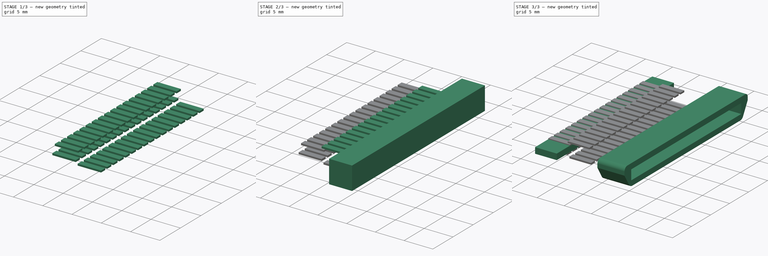
[diagram: build sequence overview — one tinted view per stage of 3, left to right]
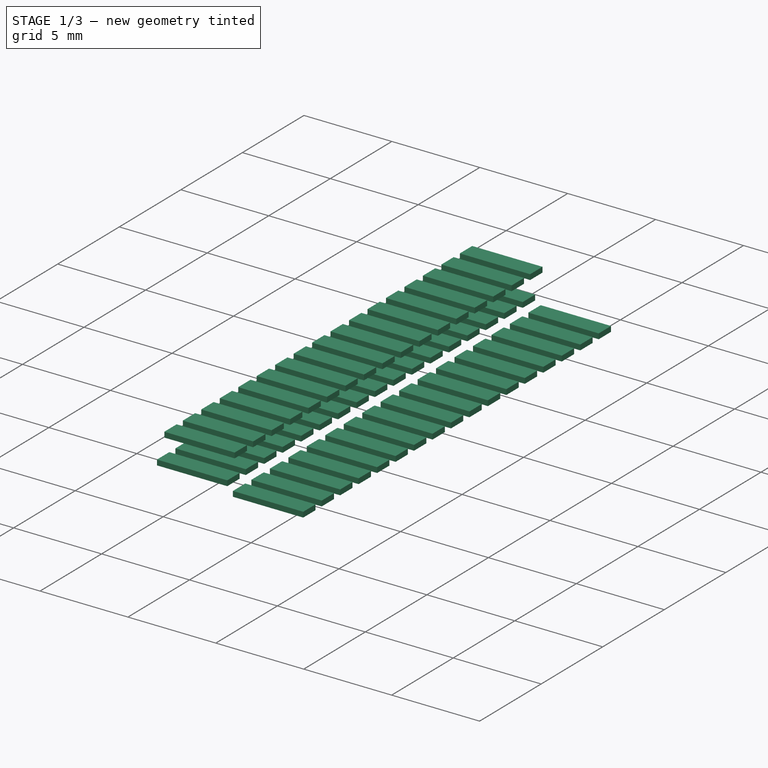
[diagram: stage 1 of 3 — iso view after this stage's code; geometry added in this stage tinted green]
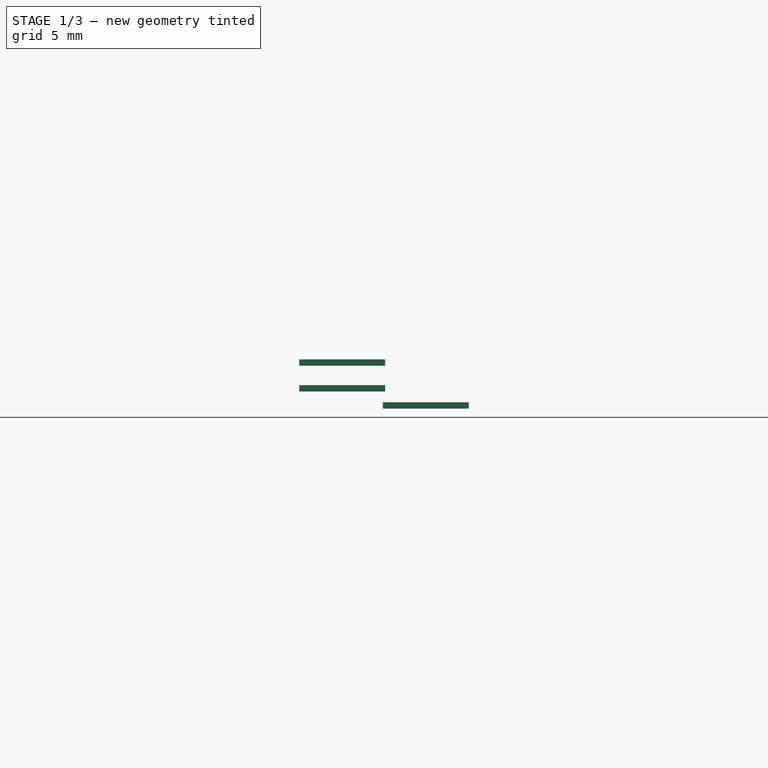
[diagram: stage 1 of 3 — front view after this stage's code; geometry added in this stage tinted green]
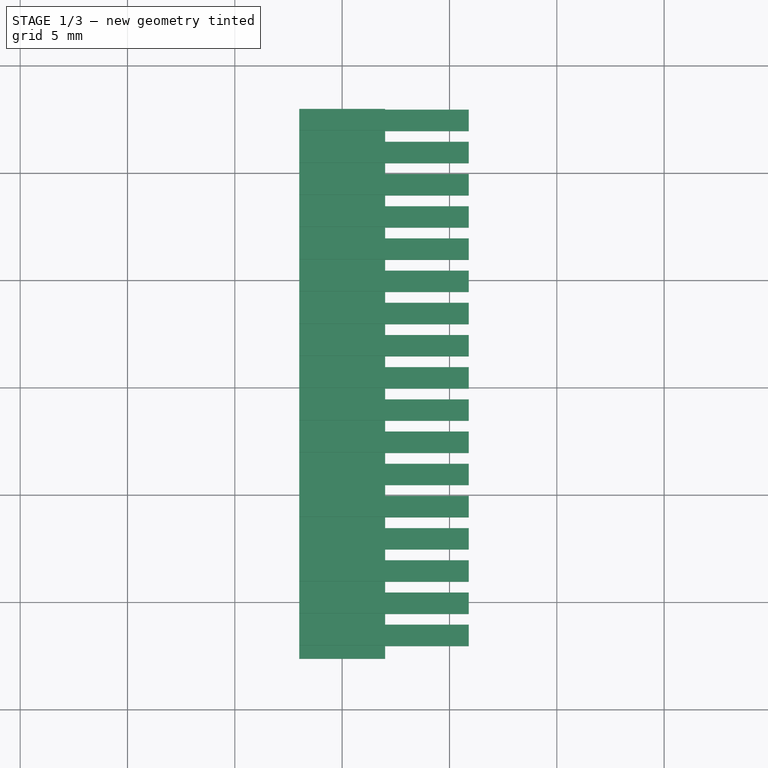
[diagram: stage 1 of 3 — top view after this stage's code; geometry added in this stage tinted green]
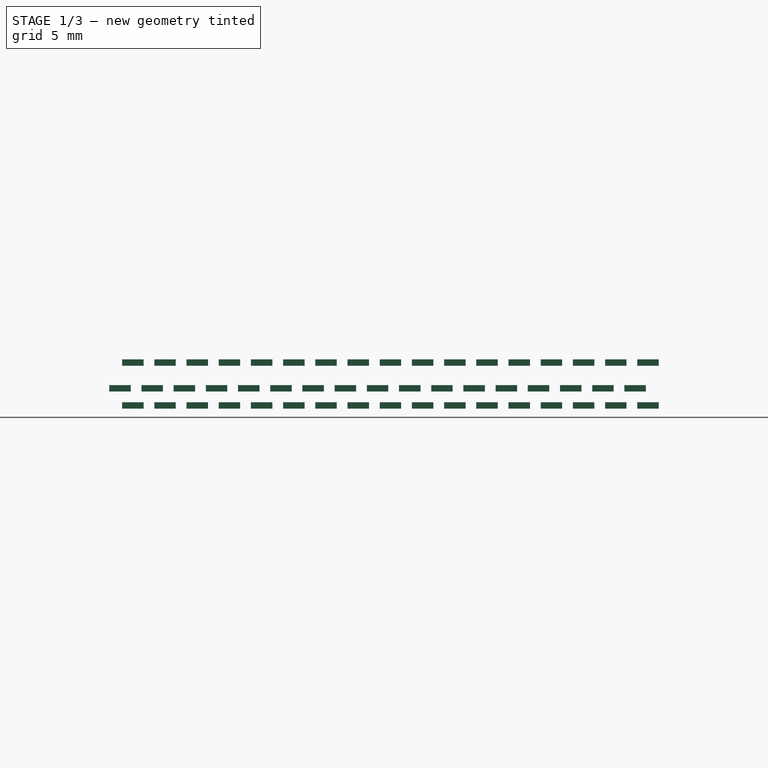
[diagram: stage 1 of 3 — right view after this stage's code; geometry added in this stage tinted green]
FCSTD DOCUMENT  (FreeCAD 0.17R13528 (Git))
Label: VHDCI 68pin male welding pad
License: All rights reserved
LicenseURL: http://en.wikipedia.org/wiki/All_rights_reserved
objects: Part::Extrusion×8, Sketcher::SketchObject×5, PartDesign::Body×2, Part::Feature×1
note: 16 computed .brp shape members not serialized (recipe doc carries the construction recipe); baked Part::Feature solids carry a one-line shape summary decoded from their .brp

FEATURE [Part::Extrusion] Extrude005
  Base = -> Sketch004
  Dir = (1,0,0)
  DirMode = 2
  FaceMakerClass = Part::FaceMakerBullseye
  LengthFwd = 4
  LengthRev = 0
  Placement = pos=(-12,0.6,-0.8) rot=(0,0,1;0rad)
  Solid = true
  Symmetric = false
FEATURE [Part::Extrusion] Extrude006
  Base = -> Sketch004
  Dir = (1,0,0)
  DirMode = 2
  FaceMakerClass = Part::FaceMakerBullseye
  LengthFwd = 4
  LengthRev = 0
  Placement = pos=(-12,0,-2) rot=(0,0,1;0rad)
  Solid = true
  Symmetric = false
FEATURE [Part::Extrusion] Extrude007
  Base = -> Sketch004
  Dir = (1,0,0)
  DirMode = 2
  FaceMakerClass = Part::FaceMakerBullseye
  LengthFwd = 4
  LengthRev = 0
  Placement = pos=(-8.1,0.6,-2.8) rot=(0,0,1;0rad)
  Solid = true
  Symmetric = false
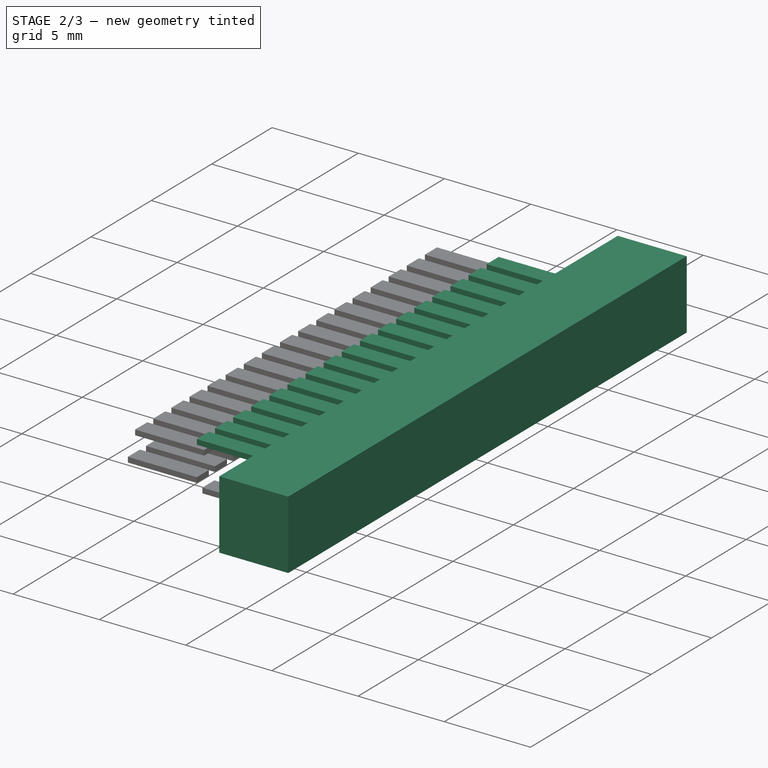
[diagram: stage 2 of 3 — iso view after this stage's code; geometry added in this stage tinted green]
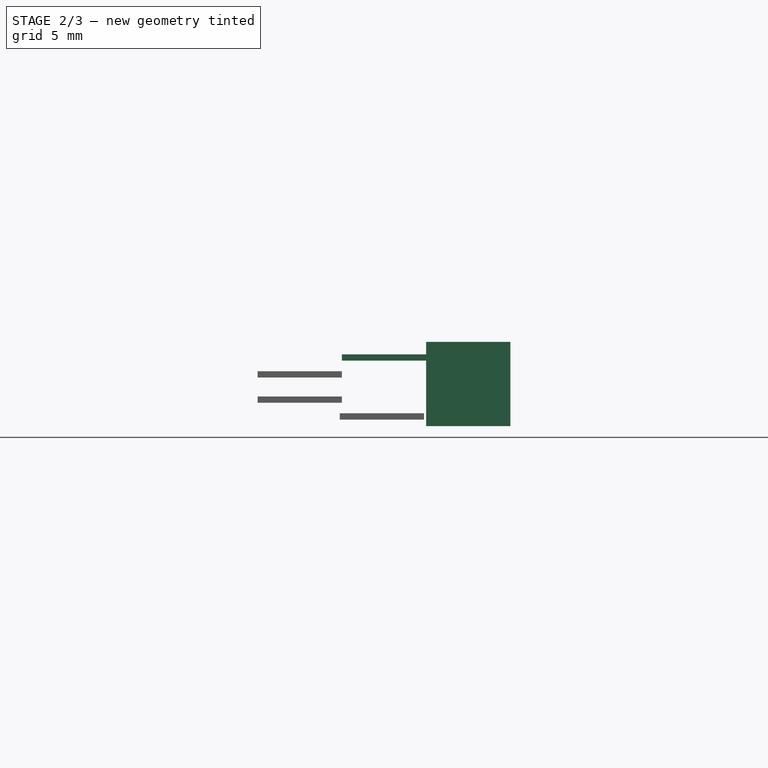
[diagram: stage 2 of 3 — front view after this stage's code; geometry added in this stage tinted green]
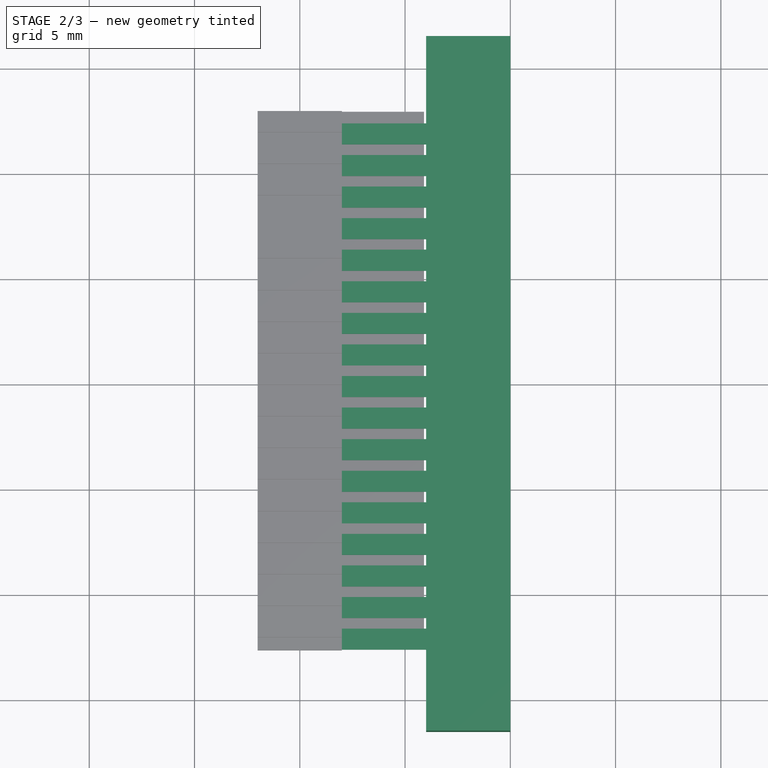
[diagram: stage 2 of 3 — top view after this stage's code; geometry added in this stage tinted green]
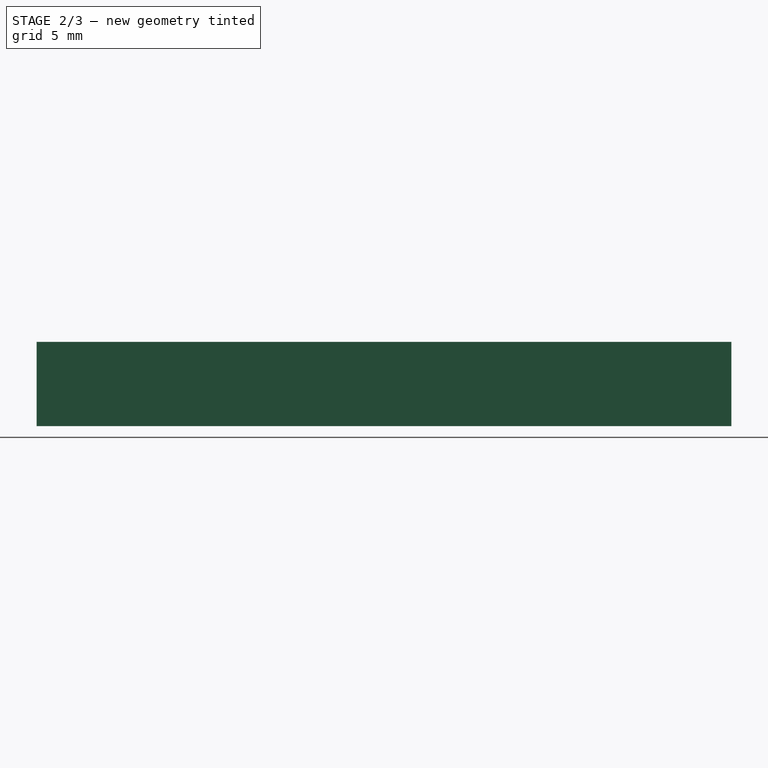
[diagram: stage 2 of 3 — right view after this stage's code; geometry added in this stage tinted green]
FEATURE [Sketcher::SketchObject] Sketch001
  MapMode = 5
  Placement = pos=(0,0,0) rot=(0.57735,0.57735,0.57735;2.0944rad)
  Support = -> [YZ_Plane]
  sketch-geometry (4):
    g0: LineSegment StartX=16.5 StartY=2 StartZ=0 EndX=-16.5 EndY=2 EndZ=0
    g1: LineSegment StartX=-16.5 StartY=2 StartZ=0 EndX=-16.5 EndY=-2 EndZ=0
    g2: LineSegment StartX=-16.5 StartY=-2 StartZ=0 EndX=16.5 EndY=-2 EndZ=0
    g3: LineSegment StartX=16.5 StartY=-2 StartZ=0 EndX=16.5 EndY=2 EndZ=0
  constraints (12):
    c: Coincident(g0,g1)
    c: Coincident(g1,g2)
    c: Coincident(g2,g3)
    c: Coincident(g3,g0)
    c: Horizontal(g0)
    c: Horizontal(g2)
    c: Vertical(g1)
    c: Vertical(g3)
    c: Symmetric(g0,g0,g-2)
    c: Symmetric(g0,g1,g-1)
    c: DistanceY(g3,g3) = 4
    c: DistanceX(g0,g0) = 33
FEATURE [Part::Extrusion] Extrude001
  Base = -> Sketch001
  Dir = (1,0,0)
  DirMode = 2
  FaceMakerClass = Part::FaceMakerBullseye
  LengthFwd = 4
  LengthRev = 0
  Reversed = true
  Solid = true
  Symmetric = false
FEATURE [Sketcher::SketchObject] Sketch004
  MapMode = 5
  Placement = pos=(0,0,0) rot=(0.57735,0.57735,0.57735;2.0944rad)
  Support = -> [YZ_Plane001]
  sketch-geometry (69):
    g0: LineSegment StartX=-12.6432 StartY=1.40804 StartZ=0 EndX=-11.6432 EndY=1.40804 EndZ=0
    g1: LineSegment StartX=-11.6432 StartY=1.40804 StartZ=0 EndX=-11.6432 EndY=1.10804 EndZ=0
    g2: LineSegment StartX=-11.6432 StartY=1.10804 StartZ=0 EndX=-12.6432 EndY=1.10804 EndZ=0
    g3: LineSegment StartX=-12.6432 StartY=1.10804 StartZ=0 EndX=-12.6432 EndY=1.40804 EndZ=0
    g4: LineSegment [constr] StartX=-11.6432 StartY=1.10804 StartZ=0 EndX=-10.1432 EndY=1.10804 EndZ=0
    g5: LineSegment StartX=-11.1432 StartY=1.40804 StartZ=0 EndX=-10.1432 EndY=1.40804 EndZ=0
    g6: LineSegment StartX=-10.1432 StartY=1.40804 StartZ=0 EndX=-10.1432 EndY=1.10804 EndZ=0
    g7: LineSegment StartX=-10.1432 StartY=1.10804 StartZ=0 EndX=-11.1432 EndY=1.10804 EndZ=0
    g8: LineSegment StartX=-11.1432 StartY=1.10804 StartZ=0 EndX=-11.1432 EndY=1.40804 EndZ=0
    g9: LineSegment StartX=-9.64319 StartY=1.40804 StartZ=0 EndX=-8.64319 EndY=1.40804 EndZ=0
    g10: LineSegment StartX=-8.64319 StartY=1.40804 StartZ=0 EndX=-8.64319 EndY=1.10804 EndZ=0
    g11: LineSegment StartX=-8.64319 StartY=1.10804 StartZ=0 EndX=-9.64319 EndY=1.10804 EndZ=0
    g12: LineSegment StartX=-9.64319 StartY=1.10804 StartZ=0 EndX=-9.64319 EndY=1.40804 EndZ=0
    g13: LineSegment StartX=-8.14319 StartY=1.40804 StartZ=0 EndX=-7.14319 EndY=1.40804 EndZ=0
    g14: LineSegment StartX=-7.14319 StartY=1.40804 StartZ=0 EndX=-7.14319 EndY=1.10804 EndZ=0
    g15: LineSegment StartX=-7.14319 StartY=1.10804 StartZ=0 EndX=-8.14319 EndY=1.10804 EndZ=0
    g16: LineSegment StartX=-8.14319 StartY=1.10804 StartZ=0 EndX=-8.14319 EndY=1.40804 EndZ=0
    g17: LineSegment StartX=-6.64319 StartY=1.40804 StartZ=0 EndX=-5.64319 EndY=1.40804 EndZ=0
    g18: LineSegment StartX=-5.64319 StartY=1.40804 StartZ=0 EndX=-5.64319 EndY=1.10804 EndZ=0
    g19: LineSegment StartX=-5.64319 StartY=1.10804 StartZ=0 EndX=-6.64319 EndY=1.10804 EndZ=0
    g20: LineSegment StartX=-6.64319 StartY=1.10804 StartZ=0 EndX=-6.64319 EndY=1.40804 EndZ=0
    g21: LineSegment StartX=-5.14319 StartY=1.40804 StartZ=0 EndX=-4.14319 EndY=1.40804 EndZ=0
    g22: LineSegment StartX=-4.14319 StartY=1.40804 StartZ=0 EndX=-4.14319 EndY=1.10804 EndZ=0
    g23: LineSegment StartX=-4.14319 StartY=1.10804 StartZ=0 EndX=-5.14319 EndY=1.10804 EndZ=0
    g24: LineSegment StartX=-5.14319 StartY=1.10804 StartZ=0 EndX=-5.14319 EndY=1.40804 EndZ=0
    g25: LineSegment StartX=-3.64319 StartY=1.40804 StartZ=0 EndX=-2.64319 EndY=1.40804 EndZ=0
    g26: LineSegment StartX=-2.64319 StartY=1.40804 StartZ=0 EndX=-2.64319 EndY=1.10804 EndZ=0
    g27: LineSegment StartX=-2.64319 StartY=1.10804 StartZ=0 EndX=-3.64319 EndY=1.10804 EndZ=0
    g28: LineSegment StartX=-3.64319 StartY=1.10804 StartZ=0 EndX=-3.64319 EndY=1.40804 EndZ=0
    g29: LineSegment StartX=-2.14319 StartY=1.40804 StartZ=0 EndX=-1.14319 EndY=1.40804 EndZ=0
    g30: LineSegment StartX=-1.14319 StartY=1.40804 StartZ=0 EndX=-1.14319 EndY=1.10804 EndZ=0
    g31: LineSegment StartX=-1.14319 StartY=1.10804 StartZ=0 EndX=-2.14319 EndY=1.10804 EndZ=0
    g32: LineSegment StartX=-2.14319 StartY=1.10804 StartZ=0 EndX=-2.14319 EndY=1.40804 EndZ=0
    g33: LineSegment StartX=-0.643187 StartY=1.40804 StartZ=0 EndX=0.356813 EndY=1.40804 EndZ=0
    g34: LineSegment StartX=0.356813 StartY=1.40804 StartZ=0 EndX=0.356813 EndY=1.10804 EndZ=0
    g35: LineSegment StartX=0.356813 StartY=1.10804 StartZ=0 EndX=-0.643187 EndY=1.10804 EndZ=0
    g36: LineSegment StartX=-0.643187 StartY=1.10804 StartZ=0 EndX=-0.643187 EndY=1.40804 EndZ=0
    g37: LineSegment StartX=0.856813 StartY=1.40804 StartZ=0 EndX=1.85681 EndY=1.40804 EndZ=0
    g38: LineSegment StartX=1.85681 StartY=1.40804 StartZ=0 EndX=1.85681 EndY=1.10804 EndZ=0
    g39: LineSegment StartX=1.85681 StartY=1.10804 StartZ=0 EndX=0.856813 EndY=1.10804 EndZ=0
    g40: LineSegment StartX=0.856813 StartY=1.10804 StartZ=0 EndX=0.856813 EndY=1.40804 EndZ=0
    g41: LineSegment StartX=2.35681 StartY=1.40804 StartZ=0 EndX=3.35681 EndY=1.40804 EndZ=0
    g42: LineSegment StartX=3.35681 StartY=1.40804 StartZ=0 EndX=3.35681 EndY=1.10804 EndZ=0
    g43: LineSegment StartX=3.35681 StartY=1.10804 StartZ=0 EndX=2.35681 EndY=1.10804 EndZ=0
    g44: LineSegment StartX=2.35681 StartY=1.10804 StartZ=0 EndX=2.35681 EndY=1.40804 EndZ=0
    g45: LineSegment StartX=3.85681 StartY=1.40804 StartZ=0 EndX=4.85681 EndY=1.40804 EndZ=0
    g46: LineSegment StartX=4.85681 StartY=1.40804 StartZ=0 EndX=4.85681 EndY=1.10804 EndZ=0
    g47: LineSegment StartX=4.85681 StartY=1.10804 StartZ=0 EndX=3.85681 EndY=1.10804 EndZ=0
    g48: LineSegment StartX=3.85681 StartY=1.10804 StartZ=0 EndX=3.85681 EndY=1.40804 EndZ=0
    g49: LineSegment StartX=5.35681 StartY=1.40804 StartZ=0 EndX=6.35681 EndY=1.40804 EndZ=0
    g50: LineSegment StartX=6.35681 StartY=1.40804 StartZ=0 EndX=6.35681 EndY=1.10804 EndZ=0
    g51: LineSegment StartX=6.35681 StartY=1.10804 StartZ=0 EndX=5.35681 EndY=1.10804 EndZ=0
    g52: LineSegment StartX=5.35681 StartY=1.10804 StartZ=0 EndX=5.35681 EndY=1.40804 EndZ=0
    g53: LineSegment StartX=6.85681 StartY=1.40804 StartZ=0 EndX=7.85681 EndY=1.40804 EndZ=0
    g54: LineSegment StartX=7.85681 StartY=1.40804 StartZ=0 EndX=7.85681 EndY=1.10804 EndZ=0
    g55: LineSegment StartX=7.85681 StartY=1.10804 StartZ=0 EndX=6.85681 EndY=1.10804 EndZ=0
    g56: LineSegment StartX=6.85681 StartY=1.10804 StartZ=0 EndX=6.85681 EndY=1.40804 EndZ=0
    g57: LineSegment StartX=8.35681 StartY=1.40804 StartZ=0 EndX=9.35681 EndY=1.40804 EndZ=0
    g58: LineSegment StartX=9.35681 StartY=1.40804 StartZ=0 EndX=9.35681 EndY=1.10804 EndZ=0
    g59: LineSegment StartX=9.35681 StartY=1.10804 StartZ=0 EndX=8.35681 EndY=1.10804 EndZ=0
    g60: LineSegment StartX=8.35681 StartY=1.10804 StartZ=0 EndX=8.35681 EndY=1.40804 EndZ=0
    g61: LineSegment StartX=9.85681 StartY=1.40804 StartZ=0 EndX=10.8568 EndY=1.40804 EndZ=0
    g62: LineSegment StartX=10.8568 StartY=1.40804 StartZ=0 EndX=10.8568 EndY=1.10804 EndZ=0
    g63: LineSegment StartX=10.8568 StartY=1.10804 StartZ=0 EndX=9.85681 EndY=1.10804 EndZ=0
    g64: LineSegment StartX=9.85681 StartY=1.10804 StartZ=0 EndX=9.85681 EndY=1.40804 EndZ=0
    g65: LineSegment StartX=11.3568 StartY=1.40804 StartZ=0 EndX=12.3568 EndY=1.40804 EndZ=0
    g66: LineSegment StartX=12.3568 StartY=1.40804 StartZ=0 EndX=12.3568 EndY=1.10804 EndZ=0
    g67: LineSegment StartX=12.3568 StartY=1.10804 StartZ=0 EndX=11.3568 EndY=1.10804 EndZ=0
    g68: LineSegment StartX=11.3568 StartY=1.10804 StartZ=0 EndX=11.3568 EndY=1.40804 EndZ=0
  constraints (173):
    c: Coincident(g0,g1)
    c: Coincident(g1,g2)
    c: Coincident(g2,g3)
    c: Coincident(g3,g0)
    c: Horizontal(g0)
    c: Horizontal(g2)
    c: Vertical(g1)
    c: Vertical(g3)
    c: Coincident(g4,g1)
    c: Horizontal(g4)
    c: DistanceX(g0,g0) = 1
    c: DistanceX(g4,g4) = 1.5
    c: DistanceY(g3,g3) = 0.3
    c: Coincident(g5,g6)
    c: Coincident(g6,g7)
    c: Coincident(g7,g8)
    c: Coincident(g8,g5)
    c: Horizontal(g5)
    c: Horizontal(g7)
    c: Vertical(g6)
    c: Vertical(g8)
    c: Equal(g0,g5) = 1
    c: Equal(g3,g8) = 0.3
    c: Coincident(g9,g10)
    c: Coincident(g10,g11)
    c: Coincident(g11,g12)
    c: Coincident(g12,g9)
    c: Horizontal(g9)
    c: Horizontal(g11)
    c: Vertical(g10)
    c: Vertical(g12)
    c: Equal(g0,g9) = 1
    c: Equal(g3,g12) = 0.3
    c: Coincident(g13,g14)
    c: Coincident(g14,g15)
    c: Coincident(g15,g16)
    c: Coincident(g16,g13)
    c: Horizontal(g13)
    c: Horizontal(g15)
    c: Vertical(g14)
    c: Vertical(g16)
    c: Equal(g0,g13) = 1
    c: Equal(g3,g16) = 0.3
    c: Coincident(g17,g18)
    c: Coincident(g18,g19)
    c: Coincident(g19,g20)
    c: Coincident(g20,g17)
    c: Horizontal(g17)
    c: Horizontal(g19)
    c: Vertical(g18)
    c: Vertical(g20)
    c: Equal(g0,g17) = 1
    c: Equal(g3,g20) = 0.3
    c: Coincident(g21,g22)
    c: Coincident(g22,g23)
    c: Coincident(g23,g24)
    c: Coincident(g24,g21)
    c: Horizontal(g21)
    c: Horizontal(g23)
    c: Vertical(g22)
    c: Vertical(g24)
    c: Equal(g0,g21) = 1
    c: Equal(g3,g24) = 0.3
    c: Coincident(g25,g26)
    c: Coincident(g26,g27)
    c: Coincident(g27,g28)
    c: Coincident(g28,g25)
    c: Horizontal(g25)
    c: Horizontal(g27)
    c: Vertical(g26)
    c: Vertical(g28)
    c: Equal(g0,g25) = 1
    c: Equal(g3,g28) = 0.3
    c: Coincident(g29,g30)
    c: Coincident(g30,g31)
    c: Coincident(g31,g32)
    c: Coincident(g32,g29)
    c: Horizontal(g29)
    c: Horizontal(g31)
    c: Vertical(g30)
    c: Vertical(g32)
    c: Equal(g0,g29) = 1
    c: Equal(g3,g32) = 0.3
    c: Coincident(g33,g34)
    c: Coincident(g34,g35)
    c: Coincident(g35,g36)
    c: Coincident(g36,g33)
    c: Horizontal(g33)
    c: Horizontal(g35)
    c: Vertical(g34)
    c: Vertical(g36)
    c: Equal(g0,g33) = 1
    c: Equal(g3,g36) = 0.3
    c: Coincident(g37,g38)
    c: Coincident(g38,g39)
    c: Coincident(g39,g40)
    c: Coincident(g40,g37)
    c: Horizontal(g37)
    c: Horizontal(g39)
    c: Vertical(g38)
    c: Vertical(g40)
    c: Equal(g0,g37) = 1
    c: Equal(g3,g40) = 0.3
    c: Coincident(g41,g42)
    c: Coincident(g42,g43)
    c: Coincident(g43,g44)
    c: Coincident(g44,g41)
    c: Horizontal(g41)
    c: Horizontal(g43)
    c: Vertical(g42)
    c: Vertical(g44)
    c: Equal(g0,g41) = 1
    c: Equal(g3,g44) = 0.3
    c: Coincident(g45,g46)
    c: Coincident(g46,g47)
    c: Coincident(g47,g48)
    c: Coincident(g48,g45)
    c: Horizontal(g45)
    c: Horizontal(g47)
    c: Vertical(g46)
    c: Vertical(g48)
    c: Equal(g0,g45) = 1
    c: Equal(g3,g48) = 0.3
    c: Coincident(g49,g50)
    c: Coincident(g50,g51)
    c: Coincident(g51,g52)
    c: Coincident(g52,g49)
    c: Horizontal(g49)
    c: Horizontal(g51)
    c: Vertical(g50)
    c: Vertical(g52)
    c: Equal(g0,g49) = 1
    c: Equal(g3,g52) = 0.3
    c: Coincident(g53,g54)
    c: Coincident(g54,g55)
    c: Coincident(g55,g56)
    c: Coincident(g56,g53)
    c: Horizontal(g53)
    c: Horizontal(g55)
    c: Vertical(g54)
    c: Vertical(g56)
    c: Equal(g0,g53) = 1
    c: Equal(g3,g56) = 0.3
    c: Coincident(g57,g58)
    c: Coincident(g58,g59)
    c: Coincident(g59,g60)
    c: Coincident(g60,g57)
    c: Horizontal(g57)
    c: Horizontal(g59)
    c: Vertical(g58)
    c: Vertical(g60)
    c: Equal(g0,g57) = 1
    c: Equal(g3,g60) = 0.3
    c: Coincident(g61,g62)
    c: Coincident(g62,g63)
    c: Coincident(g63,g64)
    c: Coincident(g64,g61)
    c: Horizontal(g61)
    c: Horizontal(g63)
    c: Vertical(g62)
    c: Vertical(g64)
    c: Equal(g0,g61) = 1
    c: Equal(g3,g64) = 0.3
    c: Coincident(g65,g66)
    c: Coincident(g66,g67)
    c: Coincident(g67,g68)
    c: Coincident(g68,g65)
    c: Horizontal(g65)
    c: Horizontal(g67)
    c: Vertical(g66)
    c: Vertical(g68)
    c: Equal(g0,g65) = 1
    c: Equal(g3,g68) = 0.3
FEATURE [PartDesign::Body] Body001  label="pad area"
  Group = -> [Sketch004]
  Origin = -> Origin001
FEATURE [Part::Extrusion] Extrude004
  Base = -> Sketch004
  Dir = (1,0,0)
  DirMode = 2
  FaceMakerClass = Part::FaceMakerBullseye
  LengthFwd = 4
  LengthRev = 0
  Placement = pos=(-8,0,0) rot=(0,0,1;0rad)
  Solid = true
  Symmetric = false
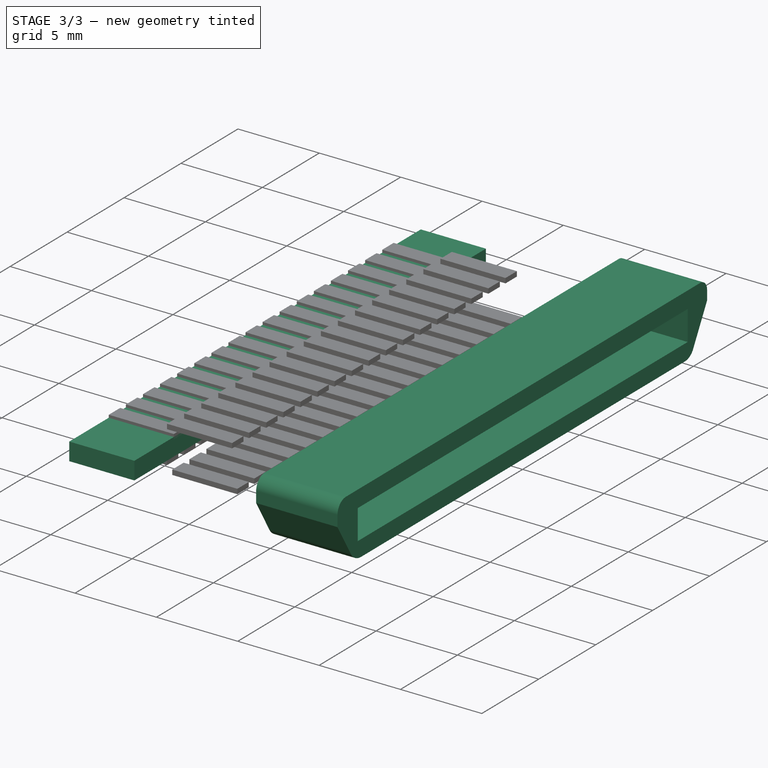
[diagram: stage 3 of 3 — iso view after this stage's code; geometry added in this stage tinted green]
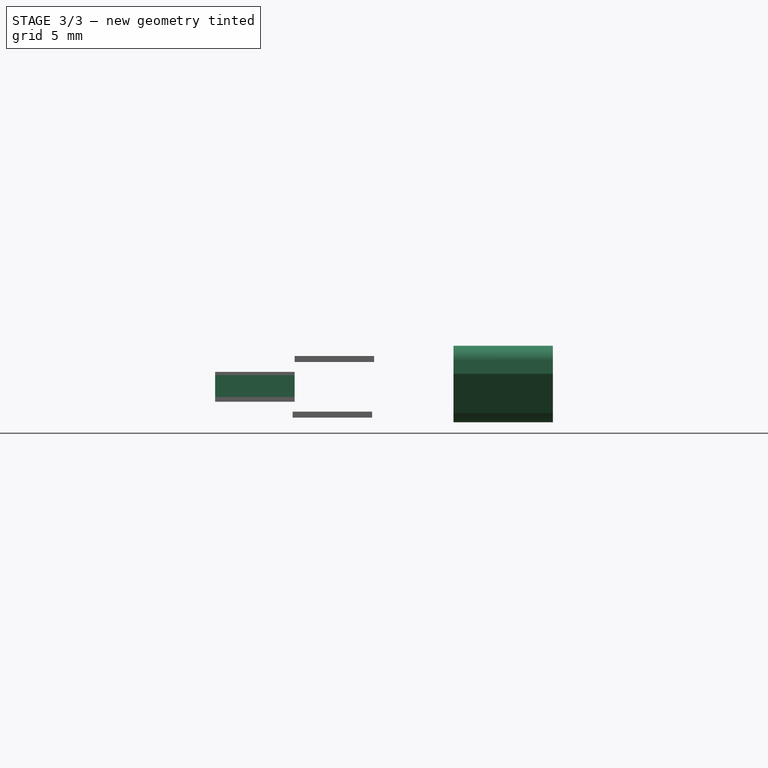
[diagram: stage 3 of 3 — front view after this stage's code; geometry added in this stage tinted green]
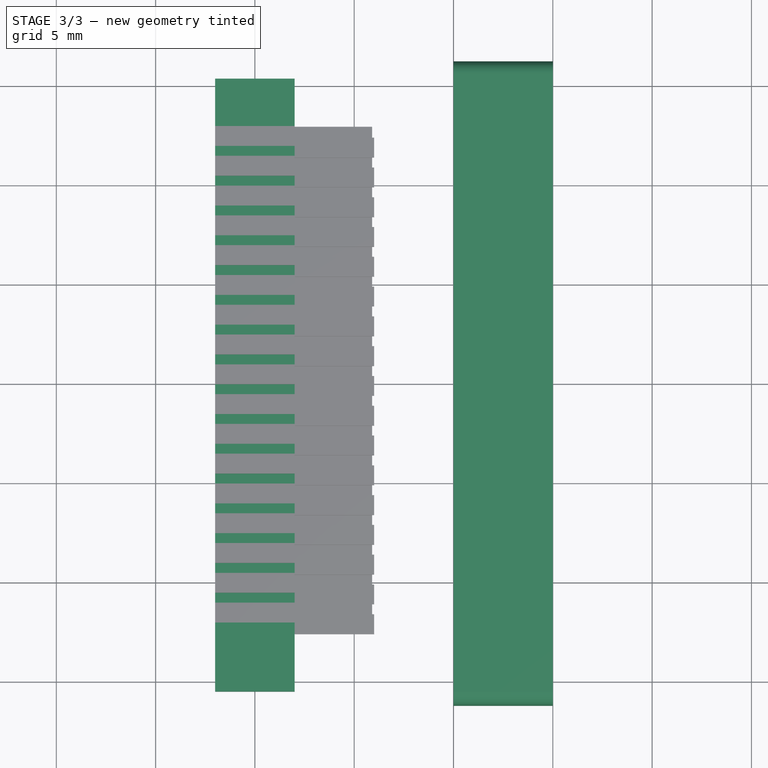
[diagram: stage 3 of 3 — top view after this stage's code; geometry added in this stage tinted green]
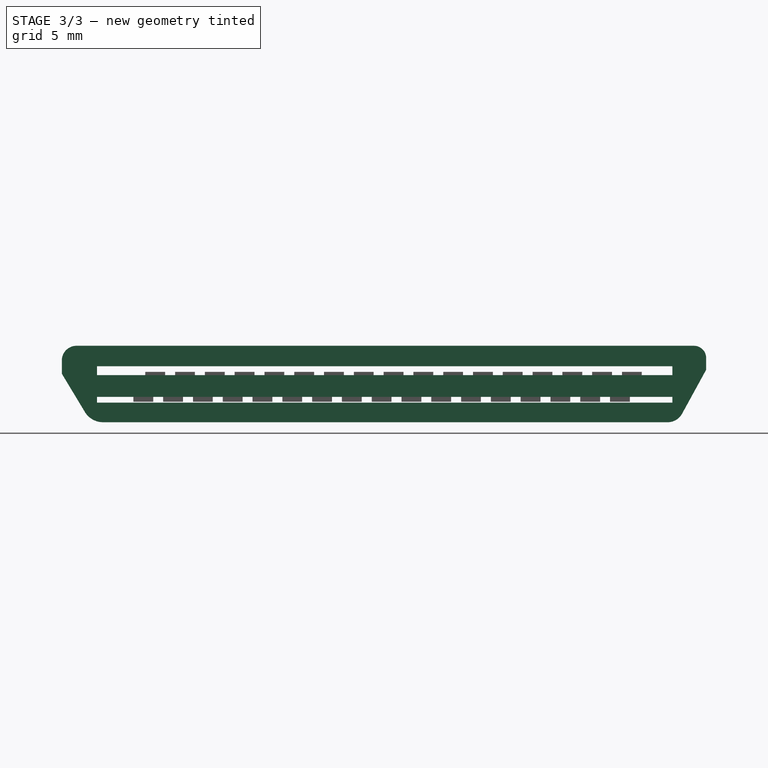
[diagram: stage 3 of 3 — right view after this stage's code; geometry added in this stage tinted green]
FEATURE [Part::Feature] Part__Feature  label="VHDCI_RTANG_RCPT_SGL_SHRTPEG"
  shape: bbox 14.75 x 42.7 x 8.284 mm, 2870 faces (baked)
FEATURE [Sketcher::SketchObject] Sketch
  MapMode = 5
  Placement = pos=(0,0,0) rot=(0.57735,0.57735,0.57735;2.0944rad)
  Support = -> [YZ_Plane]
  sketch-geometry (14):
    g0: LineSegment StartX=15.582 StartY=1.92428 StartZ=0 EndX=-15.508 EndY=1.92428 EndZ=0
    g1: LineSegment StartX=-16.2446 StartY=1.18771 StartZ=0 EndX=-16.2446 EndY=0.517727 EndZ=0
    g2: LineSegment StartX=-14.1702 StartY=-1.92456 StartZ=0 EndX=14.2649 EndY=-1.92456 EndZ=0
    g3: LineSegment StartX=16.197 StartY=0.717215 StartZ=0 EndX=16.197 EndY=1.30922 EndZ=0
    g4: LineSegment StartX=14.9823 StartY=-1.49959 StartZ=0 EndX=16.197 EndY=0.717215 EndZ=0
    g5: LineSegment StartX=-15.0857 StartY=-1.40709 StartZ=0 EndX=-16.2446 EndY=0.517727 EndZ=0
    g6: LineSegment StartX=-14.4716 StartY=0.895592 StartZ=0 EndX=14.4965 EndY=0.895592 EndZ=0
    g7: LineSegment StartX=14.4965 StartY=0.895592 StartZ=0 EndX=14.4965 EndY=-0.938801 EndZ=0
    g8: LineSegment StartX=14.4965 StartY=-0.938801 StartZ=0 EndX=-14.4716 EndY=-0.938801 EndZ=0
    g9: LineSegment StartX=-14.4716 StartY=-0.938801 StartZ=0 EndX=-14.4716 EndY=0.895592 EndZ=0
    g10: ArcOfCircle CenterX=-15.508 CenterY=1.18771 CenterZ=0 NormalX=0 NormalY=0 NormalZ=1 AngleXU=0 Radius=0.736567 StartAngle=1.5708 EndAngle=3.14159
    g11: ArcOfCircle CenterX=15.582 CenterY=1.30922 CenterZ=0 NormalX=0 NormalY=0 NormalZ=1 AngleXU=0 Radius=0.615063 StartAngle=0 EndAngle=1.5708
    g12: ArcOfCircle CenterX=14.2649 CenterY=-1.10649 CenterZ=0 NormalX=0 NormalY=0 NormalZ=1 AngleXU=0 Radius=0.818066 StartAngle=4.71239 EndAngle=5.78193
    g13: ArcOfCircle CenterX=-14.1702 CenterY=-0.855876 CenterZ=0 NormalX=0 NormalY=0 NormalZ=1 AngleXU=0 Radius=1.06868 StartAngle=3.68353 EndAngle=4.71239
  constraints (22):
    c: Horizontal(g0)
    c: Horizontal(g2)
    c: Vertical(g1)
    c: Vertical(g3)
    c: Coincident(g3,g4)
    c: Coincident(g1,g5)
    c: Coincident(g6,g7)
    c: Coincident(g7,g8)
    c: Coincident(g8,g9)
    c: Coincident(g9,g6)
    c: Horizontal(g6)
    c: Horizontal(g8)
    c: Vertical(g7)
    c: Vertical(g9)
    c: Tangent(g0,g10) = -1.5708
    c: Tangent(g1,g10) = -1.5708
    c: Tangent(g0,g11) = -1.5708
    c: Tangent(g3,g11) = -1.5708
    c: Tangent(g4,g12) = -1.5708
    c: Tangent(g2,g12) = -1.5708
    c: Tangent(g5,g13) = 1.5708
    c: Tangent(g2,g13) = -1.5708
FEATURE [Part::Extrusion] Extrude
  Base = -> Sketch
  Dir = (1,0,0)
  DirMode = 2
  FaceMakerClass = Part::FaceMakerBullseye
  LengthFwd = 5
  LengthRev = 0
  Solid = true
  Symmetric = false
FEATURE [Sketcher::SketchObject] Sketch002
  MapMode = 5
  Placement = pos=(-4,0,0) rot=(-0.57735,0.57735,0.57735;4.18879rad)
  Support = -> [Extrude001]
  sketch-geometry (4):
    g0: LineSegment StartX=-15.4165 StartY=1.25981 StartZ=0 EndX=15.4407 EndY=1.25981 EndZ=0
    g1: LineSegment StartX=15.4407 StartY=1.25981 StartZ=0 EndX=15.4407 EndY=-1.40469 EndZ=0
    g2: LineSegment StartX=15.4407 StartY=-1.40469 StartZ=0 EndX=-15.4165 EndY=-1.40469 EndZ=0
    g3: LineSegment StartX=-15.4165 StartY=-1.40469 StartZ=0 EndX=-15.4165 EndY=1.25981 EndZ=0
  constraints (8):
    c: Coincident(g0,g1)
    c: Coincident(g1,g2)
    c: Coincident(g2,g3)
    c: Coincident(g3,g0)
    c: Horizontal(g0)
    c: Horizontal(g2)
    c: Vertical(g1)
    c: Vertical(g3)
FEATURE [Part::Extrusion] Extrude002
  Base = -> Sketch002
  Dir = (-1,0,0)
  DirMode = 2
  FaceMakerClass = Part::FaceMakerBullseye
  LengthFwd = 4
  LengthRev = 0
  Solid = true
  Symmetric = false
FEATURE [Sketcher::SketchObject] Sketch003
  MapMode = 5
  Placement = pos=(-8,0,0) rot=(-0.57735,0.57735,0.57735;4.18879rad)
  Support = -> [Extrude002]
  sketch-geometry (4):
    g0: LineSegment StartX=-15.3459 StartY=0.44483 StartZ=0 EndX=15.5103 EndY=0.44483 EndZ=0
    g1: LineSegment StartX=15.5103 StartY=0.44483 StartZ=0 EndX=15.5103 EndY=-0.64572 EndZ=0
    g2: LineSegment StartX=15.5103 StartY=-0.64572 StartZ=0 EndX=-15.3459 EndY=-0.64572 EndZ=0
    g3: LineSegment StartX=-15.3459 StartY=-0.64572 StartZ=0 EndX=-15.3459 EndY=0.44483 EndZ=0
  constraints (8):
    c: Coincident(g0,g1)
    c: Coincident(g1,g2)
    c: Coincident(g2,g3)
    c: Coincident(g3,g0)
    c: Horizontal(g0)
    c: Horizontal(g2)
    c: Vertical(g1)
    c: Vertical(g3)
FEATURE [PartDesign::Body] Body
  Group = -> [Sketch,Sketch001,Sketch002,Sketch003]
  Origin = -> Origin
FEATURE [Part::Extrusion] Extrude003
  Base = -> Sketch003
  Dir = (-1,0,0)
  DirMode = 2
  FaceMakerClass = Part::FaceMakerBullseye
  LengthFwd = 4
  LengthRev = 0
  Solid = true
  Symmetric = false
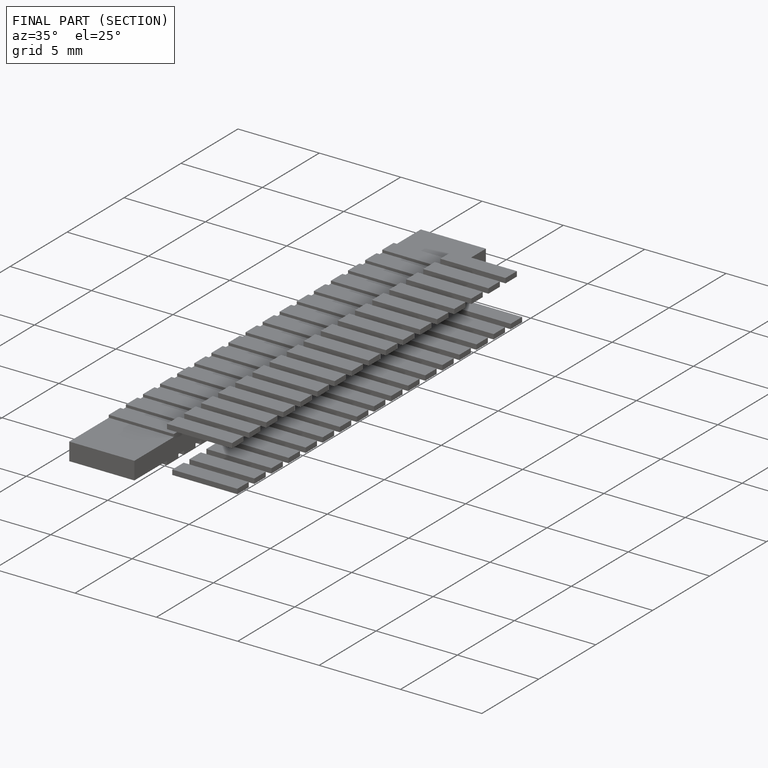
[diagram: finished part — half-section view (interior)]
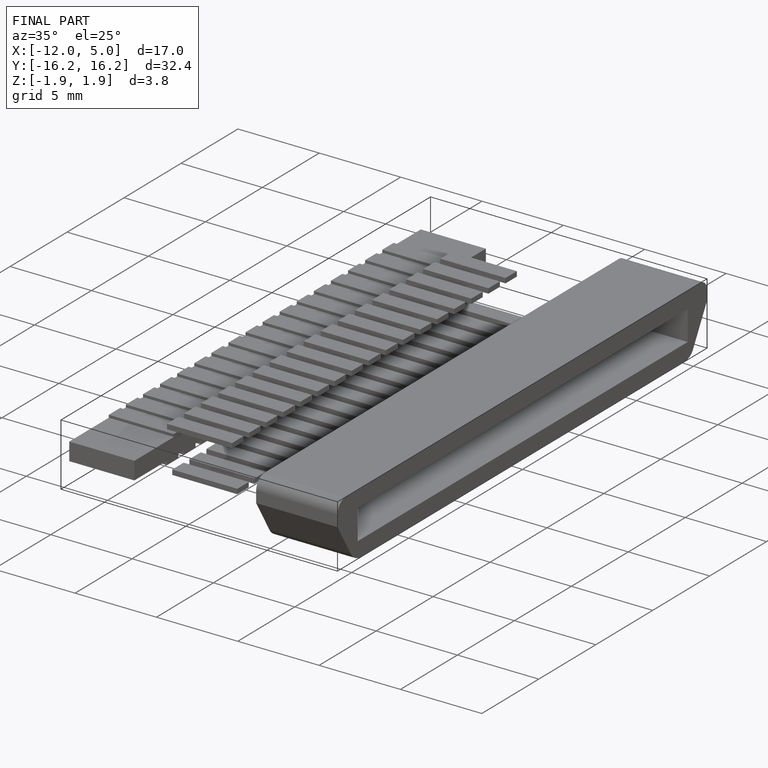
[diagram: finished part — iso view with bounding-box wireframe]
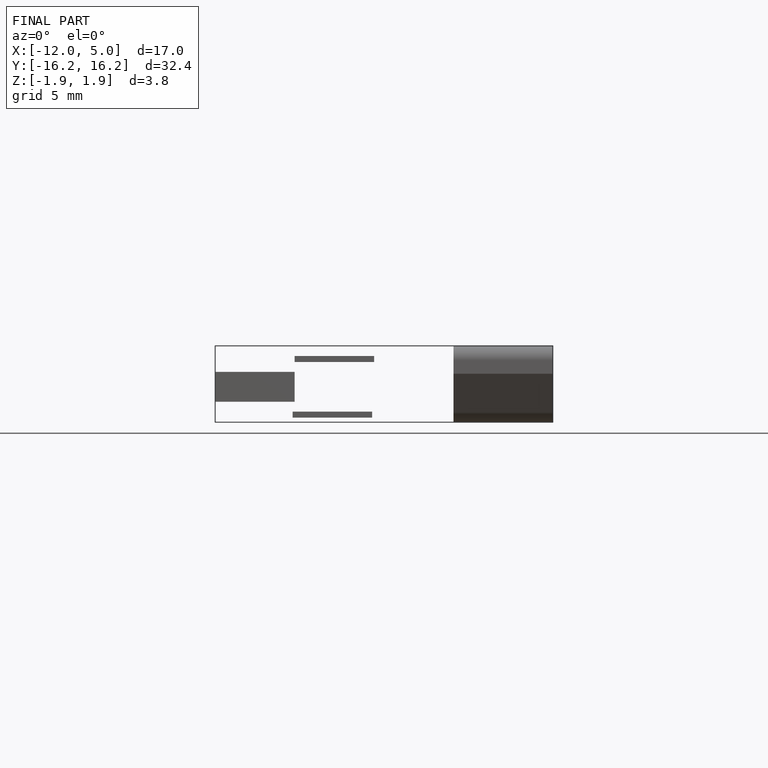
[diagram: finished part — front view with bounding-box wireframe]
